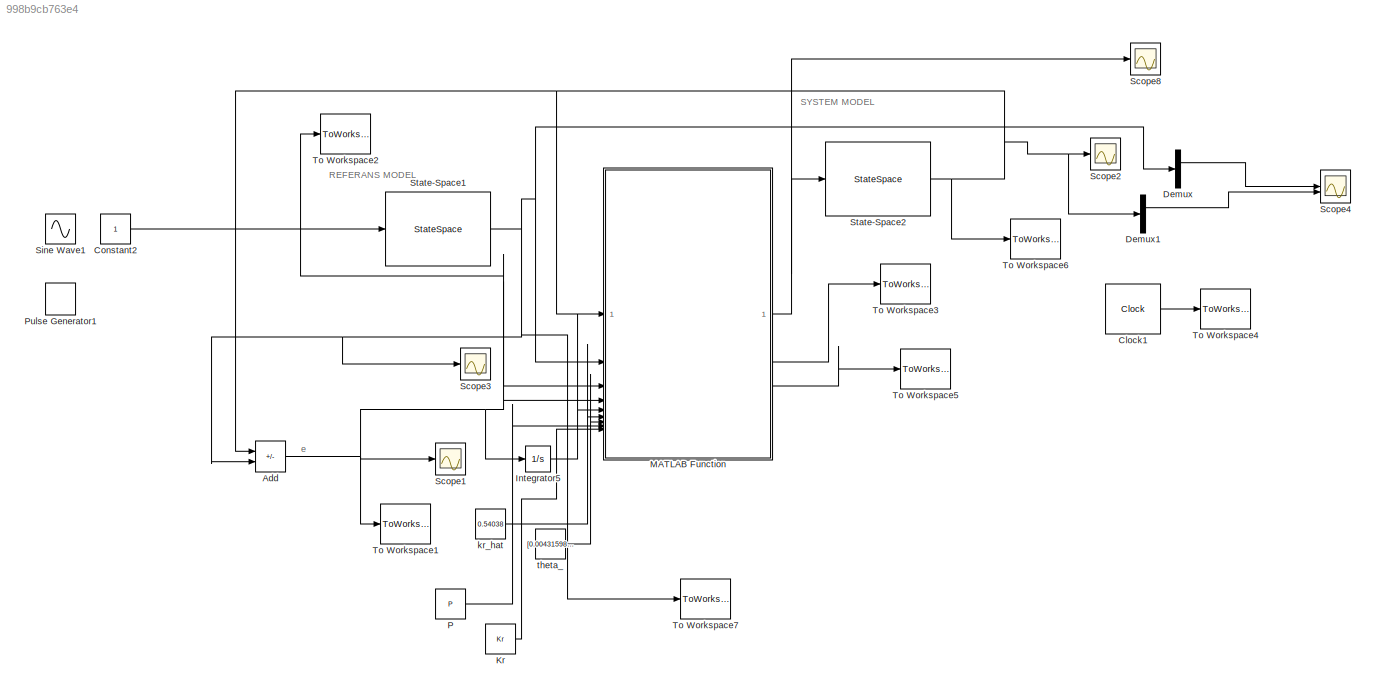
MODEL slx_998b9cb763e4
KIND model
CONFIG AbsTol = auto
CONFIG EnableMultiTasking = off
CONFIG FixedStep = 0.001
CONFIG MaxStep = auto
CONFIG MinStep = auto
CONFIG RelTol = 1e-3
CONFIG SampleTimeConstraint = Unconstrained
CONFIG SolverName = ode5
CONFIG StartTime = 0.0
CONFIG StopTime = 120
BLOCK [Sum] Add
  IconShape = rectangular
  Inputs = +-
BLOCK [Clock] Clock1
  Decimation = 1
  DisplayTime = on
BLOCK [Constant] Constant2
  SampleTime = 0.001
BLOCK [Demux] Demux
  Outputs = 2
BLOCK [Demux] Demux1
  Outputs = 2
BLOCK [Integrator] Integrator5
BLOCK [Constant] Kr
  SampleTime = 0.001
  Value = Kr
  VectorParams1D = off
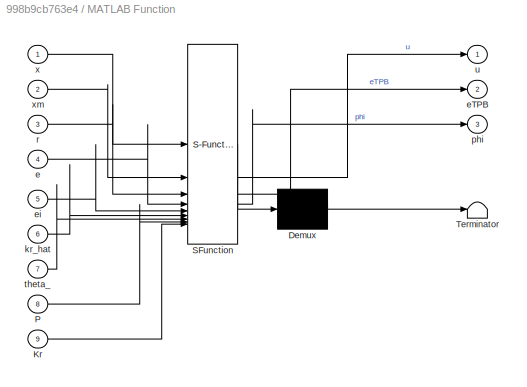
BLOCK [SubSystem] MATLAB Function
  ErrorFcn = Stateflow.Translate.translate
  LibrarySourceBlock = simulink/User-Defined\nFunctions/MATLAB Function
  PermitHierarchicalResolution = ExplicitOnly
  SFBlockType = MATLAB Function
  TreatAsAtomicUnit = on
BLOCK [Demux] MATLAB Function/ Demux 
  Outputs = 1
BLOCK [S-Function] MATLAB Function/ SFunction 
  EnableBusSupport = on
  FunctionName = sf_sfun
  PortCounts = [9 4]
  SFcnIsStateOwnerBlock = off
  SFunctionDeploymentMode = off
  Tag = Stateflow S-Function 2
BLOCK [Terminator] MATLAB Function/ Terminator 
BLOCK [Inport] MATLAB Function/Kr
  Port = 9
BLOCK [Inport] MATLAB Function/P
  Port = 8
BLOCK [Inport] MATLAB Function/e
  Port = 4
BLOCK [Outport] MATLAB Function/eTPB
  Port = 2
BLOCK [Inport] MATLAB Function/ei
  Port = 5
BLOCK [Inport] MATLAB Function/kr_hat
  Port = 6
BLOCK [Outport] MATLAB Function/phi
  Port = 3
BLOCK [Inport] MATLAB Function/r
  Port = 3
BLOCK [Inport] MATLAB Function/theta_
  Port = 7
BLOCK [Outport] MATLAB Function/u
BLOCK [Inport] MATLAB Function/x
BLOCK [Inport] MATLAB Function/xm
  Port = 2
BLOCK [Constant] P
  SampleTime = 0.001
  Value = P
  VectorParams1D = off
BLOCK [DiscretePulseGenerator] Pulse Generator1
  Period = 10
  PulseType = Time based
  PulseWidth = 5
BLOCK [Scope] Scope1
  Floating = off
  NumInputPorts = 1
  ScopeSpecificationString = Simulink.scopes.TimeScopeBlockCfg('CurrentConfiguration', extmgr.ConfigurationSet(extmgr.Configuration('Core','General UI',true),extmgr.Configuration('Core','Source UI',true),extmgr.Configuration('Sources','WiredSimulink',true,'DataLoggingVariableName','ScopeData1'),extmgr.Configuration('Visuals','Time Domain',true,'SerializedDisplays',{struct('MinYLimReal','-0.18','MaxYLimReal','0.02','YLabelReal...<+1354ch>
BLOCK [Scope] Scope2
  Floating = off
  NumInputPorts = 1
  ScopeSpecificationString = Simulink.scopes.TimeScopeBlockCfg('CurrentConfiguration', extmgr.ConfigurationSet(extmgr.Configuration('Core','General UI',true),extmgr.Configuration('Core','Source UI',true),extmgr.Configuration('Sources','WiredSimulink',true,'DataLoggingVariableName','ScopeData2'),extmgr.Configuration('Visuals','Time Domain',true,'SerializedDisplays',{struct('MinYLimReal','-0.15157','MaxYLimReal','1.28237','YLab...<+1390ch>
BLOCK [Scope] Scope3
  Floating = off
  NumInputPorts = 1
  ScopeSpecificationString = Simulink.scopes.TimeScopeBlockCfg('CurrentConfiguration', extmgr.ConfigurationSet(extmgr.Configuration('Core','General UI',true),extmgr.Configuration('Core','Source UI',true),extmgr.Configuration('Sources','WiredSimulink',true,'DataLoggingVariableName','ScopeData3'),extmgr.Configuration('Visuals','Time Domain',true,'SerializedDisplays',{struct('MinYLimReal','-0.12801','MaxYLimReal','1.13495','YLab...<+1390ch>
BLOCK [Scope] Scope4
  Floating = off
  NumInputPorts = 2
  ScopeSpecificationString = Simulink.scopes.TimeScopeBlockCfg('CurrentConfiguration', extmgr.ConfigurationSet(extmgr.Configuration('Core','General UI',true),extmgr.Configuration('Core','Source UI',true),extmgr.Configuration('Sources','WiredSimulink',true,'DataLoggingVariableName','ScopeData4'),extmgr.Configuration('Visuals','Time Domain',true,'SerializedDisplays',{struct('MinYLimReal','-0.3319','MaxYLimReal','1.72248','YLabe...<+1404ch>
BLOCK [Scope] Scope8
  Floating = off
  NumInputPorts = 1
  ScopeSpecificationString = Simulink.scopes.TimeScopeBlockCfg('CurrentConfiguration', extmgr.ConfigurationSet(extmgr.Configuration('Core','General UI',true),extmgr.Configuration('Core','Source UI',true),extmgr.Configuration('Sources','WiredSimulink',true,'DataLoggingVariableName','ScopeData2'),extmgr.Configuration('Visuals','Time Domain',true,'SerializedDisplays',{struct('MinYLimReal','-0.05729','MaxYLimReal','0.18473','YLab...<+1376ch>
BLOCK [Sin] Sine Wave1
  SampleTime = 0
BLOCK [StateSpace] State-Space1
  A = [0 1;-9.5802 -3.84]
  B = [0;9.5802]
  C = [1 0;0 1]
  D = [0;0]
  InitialCondition = 0
BLOCK [StateSpace] State-Space2
  A = [0 1;-1 -2]
  B = [0;1]
  C = [1 0;0 1]
  D = [0;0]
  InitialCondition = 0
BLOCK [ToWorkspace] To Workspace1
  MaxDataPoints = inf
  SampleTime = -1
  VariableName = e
BLOCK [ToWorkspace] To Workspace2
  MaxDataPoints = inf
  SampleTime = -1
  VariableName = r
BLOCK [ToWorkspace] To Workspace3
  MaxDataPoints = inf
  SampleTime = -1
  VariableName = eTPB
BLOCK [ToWorkspace] To Workspace4
  MaxDataPoints = inf
  SampleTime = -1
  VariableName = t
BLOCK [ToWorkspace] To Workspace5
  MaxDataPoints = inf
  SampleTime = -1
  VariableName = phi
BLOCK [ToWorkspace] To Workspace6
  MaxDataPoints = inf
  SampleTime = -1
  VariableName = X
BLOCK [ToWorkspace] To Workspace7
  MaxDataPoints = inf
  SampleTime = -1
  VariableName = Xm
BLOCK [Constant] kr_hat
  SampleTime = 0.001
  Value = 0.54038
BLOCK [Constant] theta_
  SampleTime = 0.001
  Value = [0.00431598561890639;0.00862460964083753;0.0129258820301967;0.017219812783492]
  VectorParams1D = off
ANNOTATION (root): e
ANNOTATION (root): REFERANS MODEL
ANNOTATION (root): SYSTEM MODEL
NET Add:1 -> Integrator5:1, MATLAB Function:4, Scope1:1, To Workspace1:1
LINE Clock1:1 -> To Workspace4:1
NET Constant2:1 -> MATLAB Function:3, State-Space1:1, To Workspace2:1
LINE Demux1:1 -> Scope4:2
LINE Demux:1 -> Scope4:1
LINE Integrator5:1 -> MATLAB Function:5
LINE Kr:1 -> MATLAB Function:9
NET MATLAB Function:1 -> Scope8:1, State-Space2:1
LINE MATLAB Function:2 -> To Workspace3:1
LINE MATLAB Function:3 -> To Workspace5:1
LINE P:1 -> MATLAB Function:8
NET State-Space1:1 -> Add:2, Demux:1, MATLAB Function:2, Scope3:1, To Workspace7:1
NET State-Space2:1 -> Add:1, Demux1:1, MATLAB Function:1, Scope2:1, To Workspace6:1
LINE kr_hat:1 -> MATLAB Function:6
LINE theta_:1 -> MATLAB Function:7
note: NET lines group one-source signal fan-out (src -> all destinations, sorted); 1:1 wires keep LINE
CHART MATLAB Function states=1 transitions=1
  STATE_LABEL 'eML_blk_kernel()'
  STATE_LABEL 'SCRIPT:\nfunction [u, eTPB, phi] = fcn(x, xm, r, e, ei, kr_hat, theta_, P,Kr)\n\n% \n%           P=[0.5,0.27;0.27,0.46];\n% \n%     % gamma_Kr = 1;\n%     % gamma_kr = 100;\n%     % gamma_theta = 1;\n%     %   3.5943    4.7982\n%     % 4.7982    9.9342\n%        % P = [2.4, 2.1;2.1, 3.359];\n%       % P=[1.7,0.05331;0.5331,0.1457];\n%     B = [0; 1];\n% % P = [3.6, 4.7;4.7, 9.9];\n%     phi = [x; ei];        % [...<+1081ch>'
CHART  states=0 transitions=0
